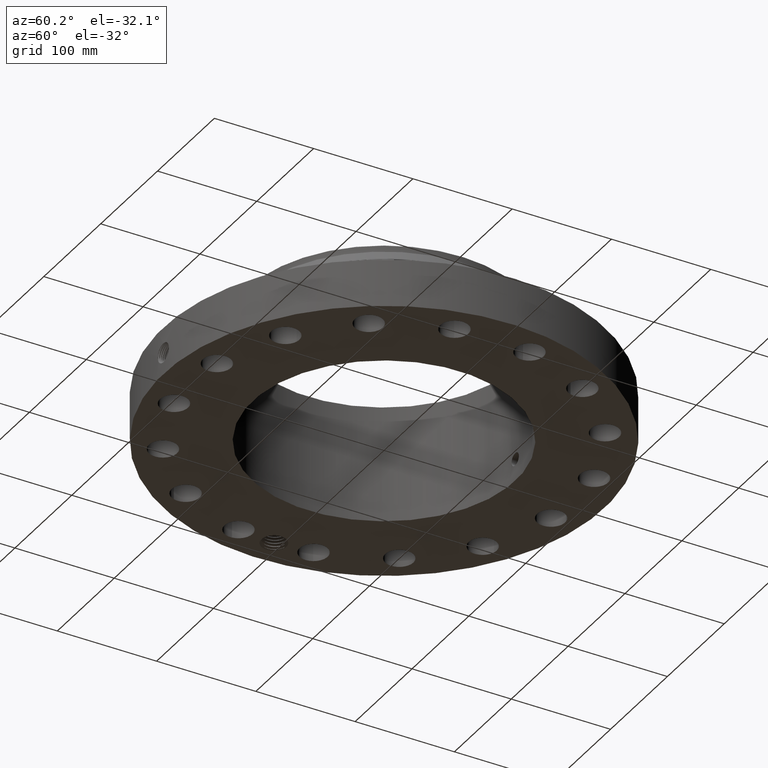
[diagram: clean part render]
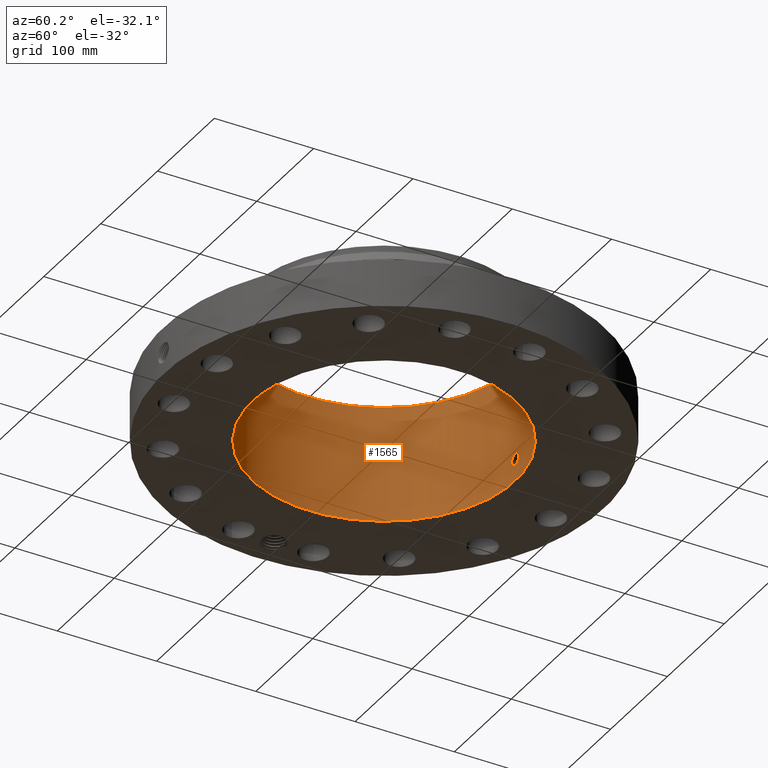
[diagram: same view with one face highlighted and labeled with its STEP entity id]
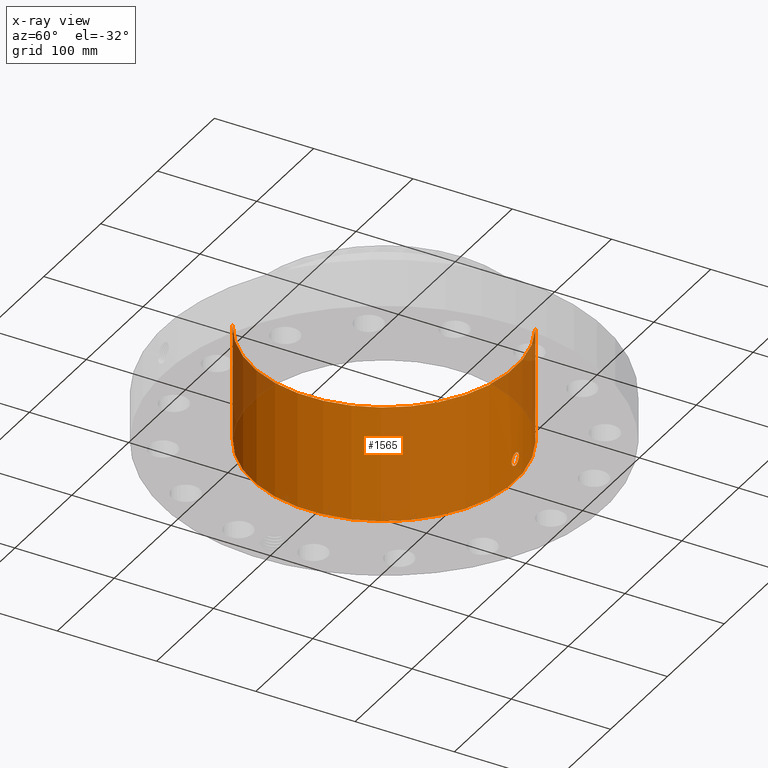
[diagram: x-ray of the same camera — body ghosted, the highlighted face saturated]
A machine part, auxiliary view. The second image highlights one B-rep face of the part: STEP entity #1565.
The next image is the same camera in x-ray: the body ghosted, the highlighted face saturated — about 9% of this face is hidden behind the body in this view.
In plain terms, the highlighted cylindrical surface (partial cylindrical patch) has radius 132.334 mm, axis along (0, 0, -1).
Its self-contained STEP definition (entity closure, byte-faithful):
#253=AXIS2_PLACEMENT_3D('Circle Axis2P3D',#251,#252,$) ;
#1442=AXIS2_PLACEMENT_3D('Cylinder Axis2P3D',#1439,#1440,#1441) ;
#1514=AXIS2_PLACEMENT_3D('Circle Axis2P3D',#1512,#1513,$) ;
#246=CARTESIAN_POINT('Vertex',(2.49780705614,4.57220514747,0.0600000000002)) ;
#248=CARTESIAN_POINT('Vertex',(-2.49780705614,-4.57220514747,0.0600000000002)) ;
#251=CARTESIAN_POINT('Axis2P3D Location',(0.,0.,0.0600000000002)) ;
#1439=CARTESIAN_POINT('Axis2P3D Location',(0.,0.,2.37000000001)) ;
#1448=CARTESIAN_POINT('Vertex',(2.49780705614,4.57220514747,4.68000000002)) ;
#1450=CARTESIAN_POINT('Vertex',(-2.49780705614,-4.57220514747,4.68000000002)) ;
#1453=CARTESIAN_POINT('Line Origine',(2.49780705614,4.57220514747,2.37000000001)) ;
#1458=CARTESIAN_POINT('Line Origine',(-2.49780705614,-4.57220514747,2.37000000001)) ;
#1512=CARTESIAN_POINT('Axis2P3D Location',(0.,0.,4.68000000002)) ;
#1524=CARTESIAN_POINT('Control Point',(0.219395640473,5.2053785216,1.05985638466)) ;
#1525=CARTESIAN_POINT('Control Point',(0.206921702724,5.20590427156,1.08268977455)) ;
#1526=CARTESIAN_POINT('Control Point',(0.191478170138,5.20651775227,1.10389882586)) ;
#1527=CARTESIAN_POINT('Control Point',(0.173344984698,5.20717156625,1.12297050048)) ;
#1528=CARTESIAN_POINT('Control Point',(0.112135178595,5.20906263558,1.17245007461)) ;
#1529=CARTESIAN_POINT('Control Point',(0.0349794767109,5.21029125719,1.19597410383)) ;
#1530=CARTESIAN_POINT('Control Point',(-0.0195628611421,5.2103830242,1.19761228184)) ;
#1531=CARTESIAN_POINT('Control Point',(-0.124148978827,5.2090305924,1.17246862887)) ;
#1532=CARTESIAN_POINT('Control Point',(-0.203194320426,5.20623138386,1.09955422783)) ;
#1533=CARTESIAN_POINT('Control Point',(-0.232170399902,5.20485332553,1.05333760744)) ;
#1534=CARTESIAN_POINT('Control Point',(-0.255833823097,5.20371895022,0.975182084367)) ;
#1535=CARTESIAN_POINT('Control Point',(-0.248294621409,5.20408005811,0.895795392095)) ;
#1536=CARTESIAN_POINT('Control Point',(-0.242060563313,5.20438304277,0.869213929179)) ;
#1537=CARTESIAN_POINT('Control Point',(-0.23232275345,5.20483367127,0.843806536933)) ;
#1538=CARTESIAN_POINT('Control Point',(-0.219395640473,5.2053785216,0.820143615352)) ;
#1539=CARTESIAN_POINT('Vertex',(0.219395640473,5.2053785216,1.05985638466)) ;
#1541=CARTESIAN_POINT('Vertex',(-0.219395640473,5.2053785216,0.820143615352)) ;
#1545=CARTESIAN_POINT('Control Point',(-0.219395640473,5.2053785216,0.820143615352)) ;
#1546=CARTESIAN_POINT('Control Point',(-0.206921702731,5.20590427156,0.797310225473)) ;
#1547=CARTESIAN_POINT('Control Point',(-0.191478170157,5.20651775227,0.776101174171)) ;
#1548=CARTESIAN_POINT('Control Point',(-0.173344984674,5.20717156625,0.757029499509)) ;
#1549=CARTESIAN_POINT('Control Point',(-0.112135178572,5.20906263559,0.707549925391)) ;
#1550=CARTESIAN_POINT('Control Point',(-0.0349794766914,5.21029125719,0.684025896168)) ;
#1551=CARTESIAN_POINT('Control Point',(0.0195628611189,5.2103830242,0.68238771816)) ;
#1552=CARTESIAN_POINT('Control Point',(0.124148978785,5.2090305924,0.707531371126)) ;
#1553=CARTESIAN_POINT('Control Point',(0.203194320376,5.20623138386,0.780445772133)) ;
#1554=CARTESIAN_POINT('Control Point',(0.232170399921,5.20485332553,0.826662392634)) ;
#1555=CARTESIAN_POINT('Control Point',(0.25583382308,5.20371895022,0.904817915627)) ;
#1556=CARTESIAN_POINT('Control Point',(0.248294621417,5.20408005811,0.984204607821)) ;
#1557=CARTESIAN_POINT('Control Point',(0.242060563281,5.20438304277,1.01078607091)) ;
#1558=CARTESIAN_POINT('Control Point',(0.232322753429,5.20483367127,1.03619346311)) ;
#1559=CARTESIAN_POINT('Control Point',(0.219395640473,5.2053785216,1.05985638466)) ;
#252=DIRECTION('Axis2P3D Direction',(0.,0.,-0.0393700787402)) ;
#1440=DIRECTION('Axis2P3D Direction',(0.,0.,-0.0393700787402)) ;
#1441=DIRECTION('Axis2P3D XDirection',(-0.0188750212049,-0.0345504945626,0.)) ;
#1454=DIRECTION('Vector Direction',(0.,0.,-0.0393700787402)) ;
#1459=DIRECTION('Vector Direction',(0.,0.,-0.0393700787402)) ;
#1513=DIRECTION('Axis2P3D Direction',(0.,0.,-0.0393700787402)) ;
#1455=VECTOR('Line Direction',#1454,0.0393700787402) ;
#1460=VECTOR('Line Direction',#1459,0.0393700787402) ;
#1518=ORIENTED_EDGE('',*,*,#1516,.F.) ;
#1519=ORIENTED_EDGE('',*,*,#1462,.T.) ;
#1520=ORIENTED_EDGE('',*,*,#255,.T.) ;
#1521=ORIENTED_EDGE('',*,*,#1457,.F.) ;
#1562=ORIENTED_EDGE('',*,*,#1543,.F.) ;
#1563=ORIENTED_EDGE('',*,*,#1560,.F.) ;
#1564=FACE_BOUND('',#1561,.T.) ;
#1565=ADVANCED_FACE('PartBody',(#1522,#1564),#1443,.F.) ;
#1523=B_SPLINE_CURVE_WITH_KNOTS('',5,(#1524,#1525,#1526,#1527,#1528,#1529,#1530,#1531,#1532,#1533,#1534,#1535,#1536,#1537,#1538),.UNSPECIFIED.,.F.,.U.,(6,3,3,3,6),(0.,4.674011455,14.0221832397,23.3721751115,28.2159923042),.UNSPECIFIED.) ;
#1544=B_SPLINE_CURVE_WITH_KNOTS('',5,(#1545,#1546,#1547,#1548,#1549,#1550,#1551,#1552,#1553,#1554,#1555,#1556,#1557,#1558,#1559),.UNSPECIFIED.,.F.,.U.,(6,3,3,3,6),(0.,4.67401145216,14.0221832388,23.3721751047,28.2159922893),.UNSPECIFIED.) ;
#254=CIRCLE('generated circle',#253,5.21000000002) ;
#1515=CIRCLE('generated circle',#1514,5.21000000002) ;
#1443=CYLINDRICAL_SURFACE('generated cylinder',#1442,5.21000000002) ;
#255=EDGE_CURVE('',#249,#247,#254,.T.) ;
#1457=EDGE_CURVE('',#1449,#247,#1456,.T.) ;
#1462=EDGE_CURVE('',#1451,#249,#1461,.T.) ;
#1516=EDGE_CURVE('',#1451,#1449,#1515,.T.) ;
#1543=EDGE_CURVE('',#1540,#1542,#1523,.T.) ;
#1560=EDGE_CURVE('',#1542,#1540,#1544,.T.) ;
#1517=EDGE_LOOP('',(#1518,#1519,#1520,#1521)) ;
#1561=EDGE_LOOP('',(#1562,#1563)) ;
#1522=FACE_OUTER_BOUND('',#1517,.T.) ;
#1456=LINE('Line',#1453,#1455) ;
#1461=LINE('Line',#1458,#1460) ;
#247=VERTEX_POINT('',#246) ;
#249=VERTEX_POINT('',#248) ;
#1449=VERTEX_POINT('',#1448) ;
#1451=VERTEX_POINT('',#1450) ;
#1540=VERTEX_POINT('',#1539) ;
#1542=VERTEX_POINT('',#1541) ;